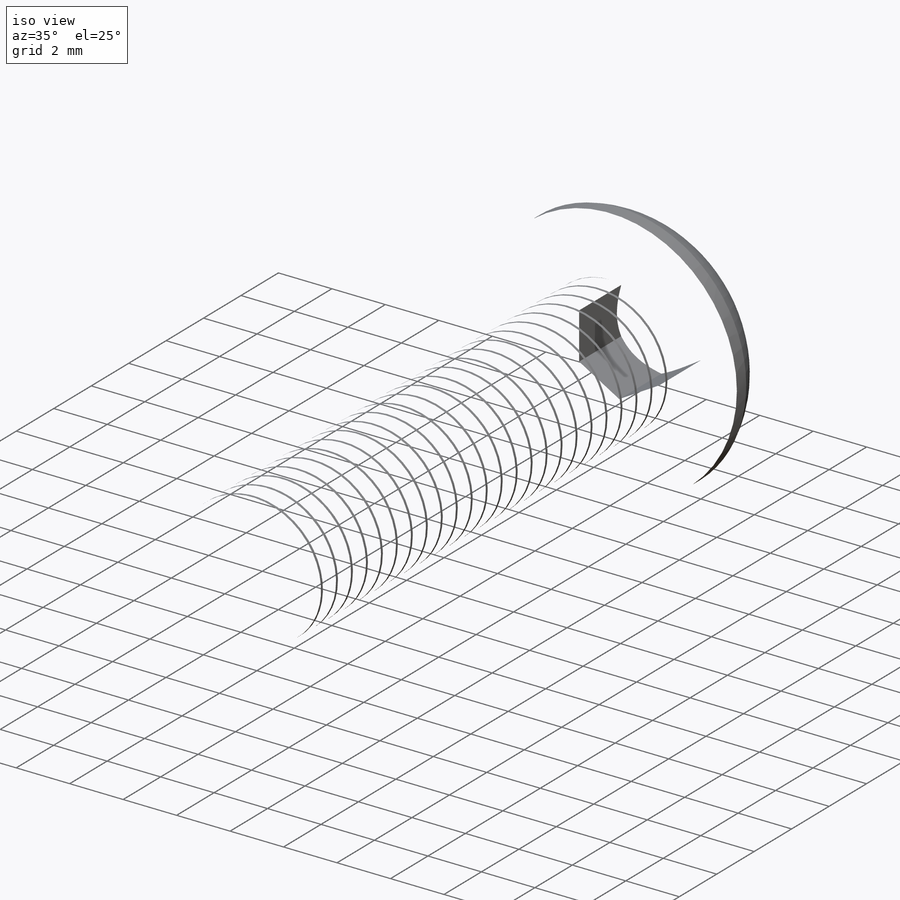
[diagram: iso view]
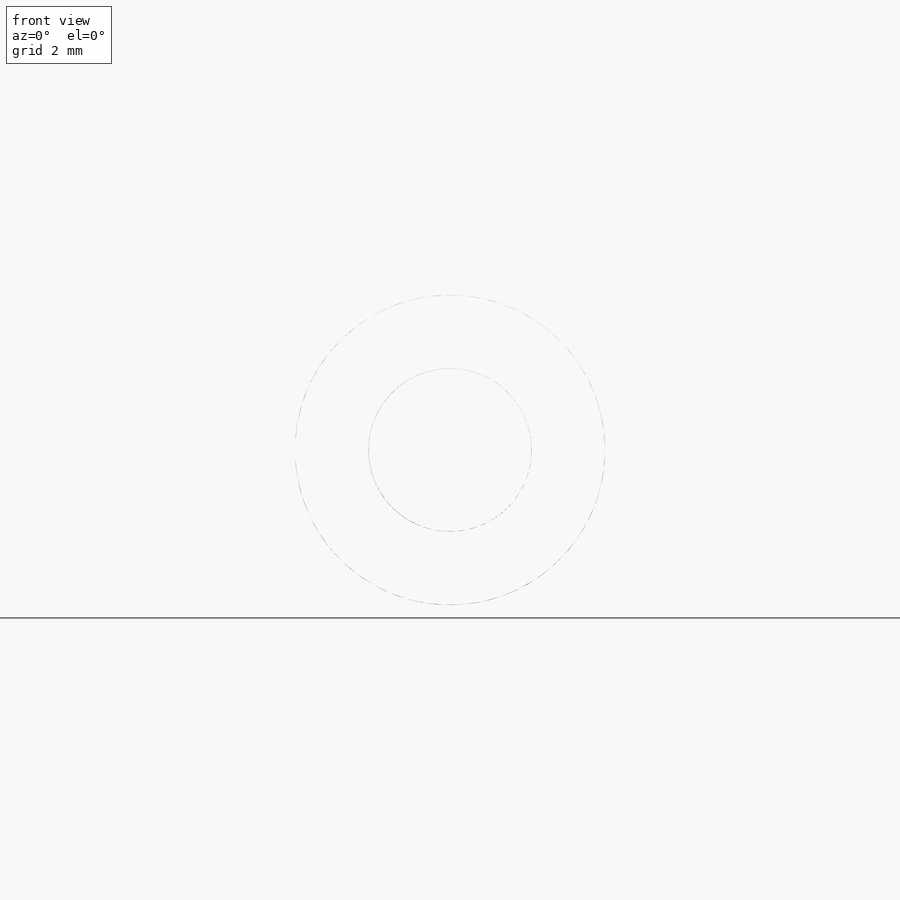
[diagram: front view]
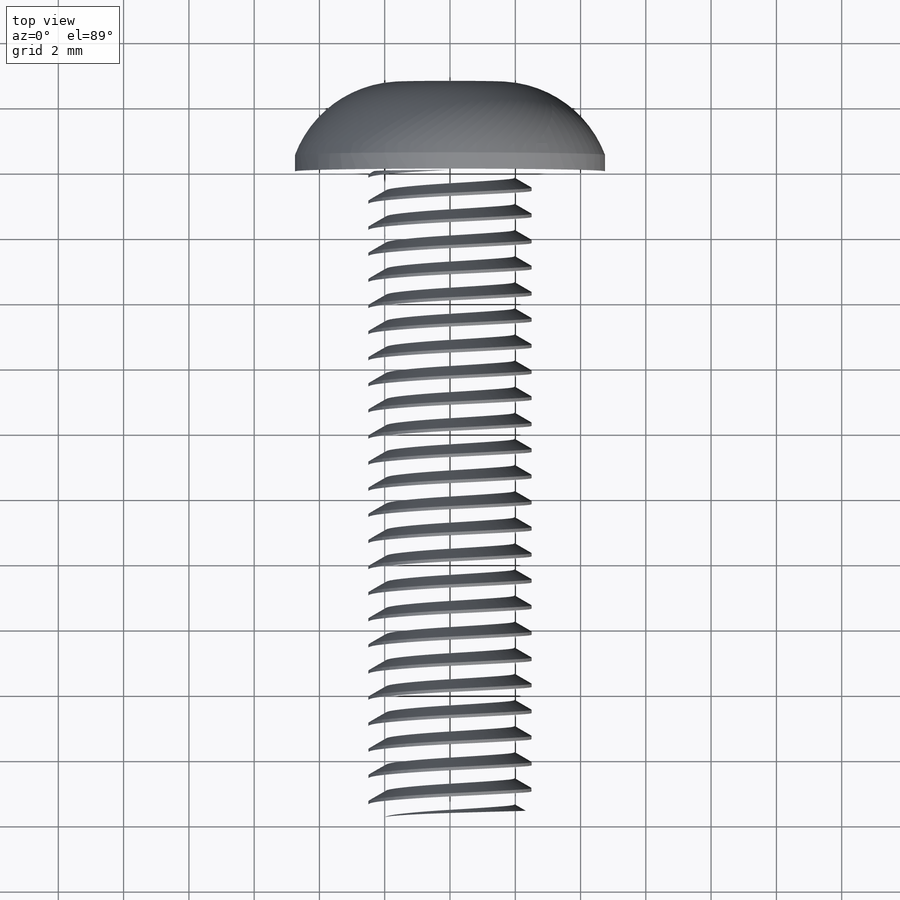
[diagram: top view]
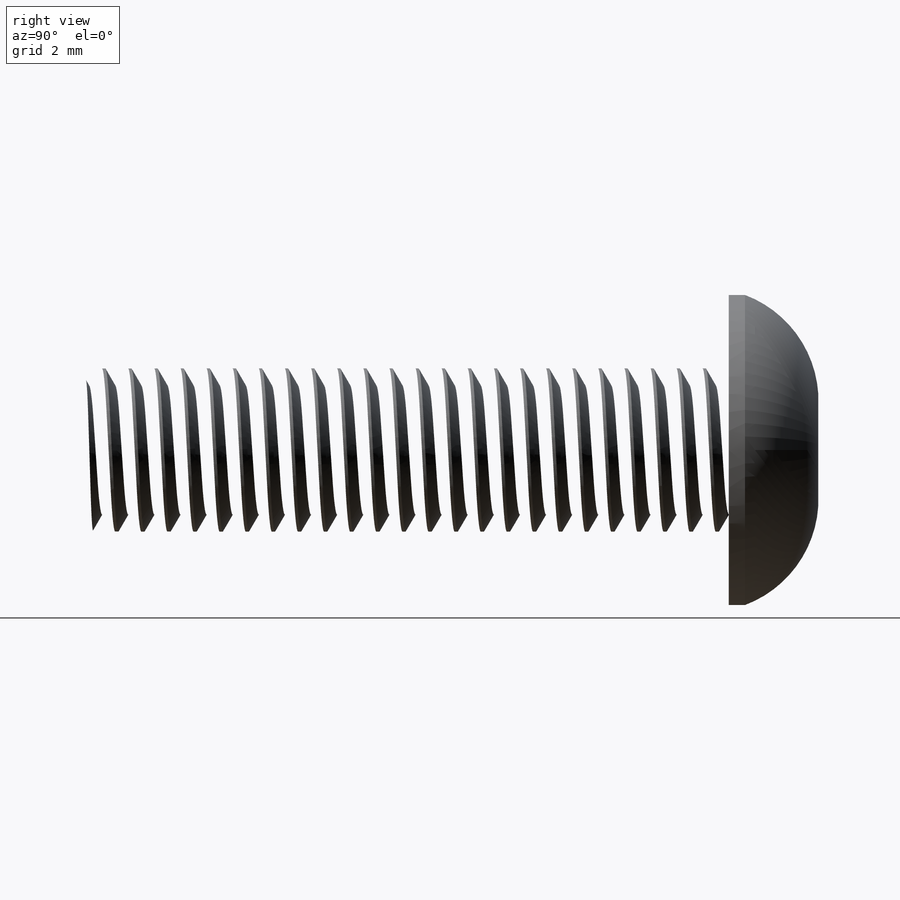
[diagram: right view]
SOLIDWORKS PART (.sldprt)
format: sldprt  version: not decoded by parser v0  size: 1,721,856 bytes
history: native  units: mm
features: sketch x10, extrude x2, cut_revolve x2, cut_extrude x2, material x1, helix x1, sweep x1, revolve x1, plane x1 (+14 scaffold rows collapsed)
feature tree (35):
  scaffold x14  (default folders/planes/origin — collapsed)
  material  "AISI 304"
  sketch  "Sketch1"  dims[OD=5.0mm]
  extrude  "Extrude1"  Depth=20mm screw length=20mm
  sketch  "Sketch2"
  helix  "Helix/Spiral1"  Pitch=20.8mm pitch=0.8mm
  sketch  "Sketch3"  dims[c1.D1=0.1mm c1.D2=0.4mm c1.D3=~1.069256mm c2.D3=60.0deg]
  sweep  "Cut-Sweep1"
  sketch  "Sketch4"  dims[c1.D1=~3.187432mm c2.D1=55.0deg c2.D2=0.254mm]
  cut_revolve  "Cut-Revolve1"  Angle=360deg
  sketch  "Sketch5"  dims[c1.Thread min=28.0mm c1.D2=0.635mm c1.D3=0.3302mm c1.D1=0.3302mm c2.D2=0.127mm c2.D3=1.0541mm c3.D3=20.0deg]
  revolve  "partially thread"  Angle=360deg
  sketch  "Sketch6"  dims[head dia=9.5mm]
  extrude  "Extrude2"  Depth=2.75mm head depth=2.75mm
  sketch  "Sketch10"  dims[D1=3.0mm D2=0.5mm D3=0.5mm]
  cut_revolve  "Cut-Revolve2"  Angle=360deg
  plane  "Plane1"  Offset=2.75mm
  sketch  "Sketch7"  dims[hex dia=3.0mm]
  cut_extrude  "Cut-Extrude1"  Depth=2.25mm
  sketch  "Sketch8"
  cut_extrude  "Cut-Extrude2"  [1 undecoded]
  sketch  "Sketch9"  dims[D1=4.4mm D4=0.635mm D5=0.3302mm]
decode coverage: 15 of 19 modeling features carry decoded parameters
note: ~ marks probable driven/reference dimensions
note: 1 parameter value undecoded
note: suppression state not decoded; provenance and decode notes live in map.json
